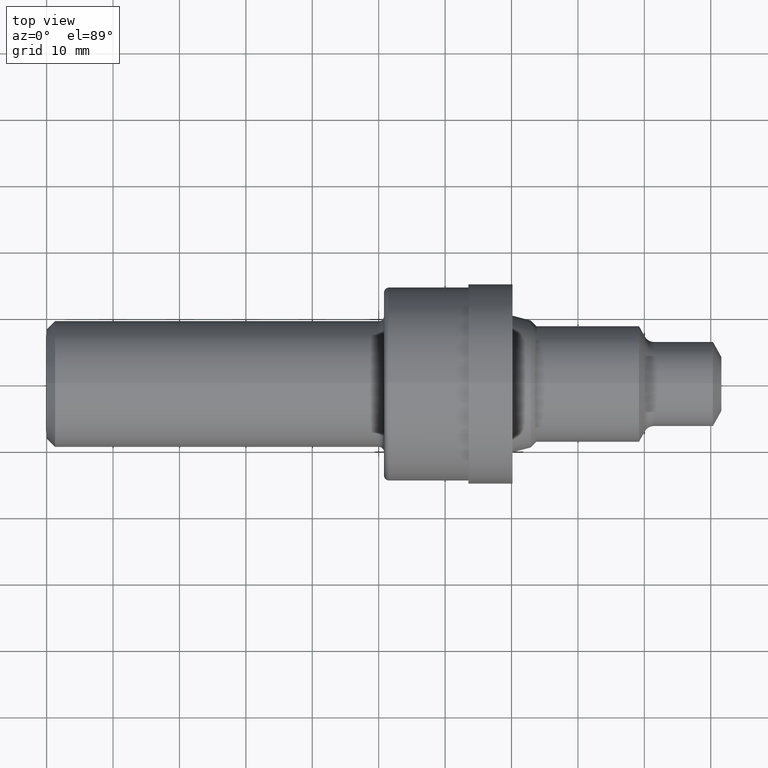
[diagram: clean part render]
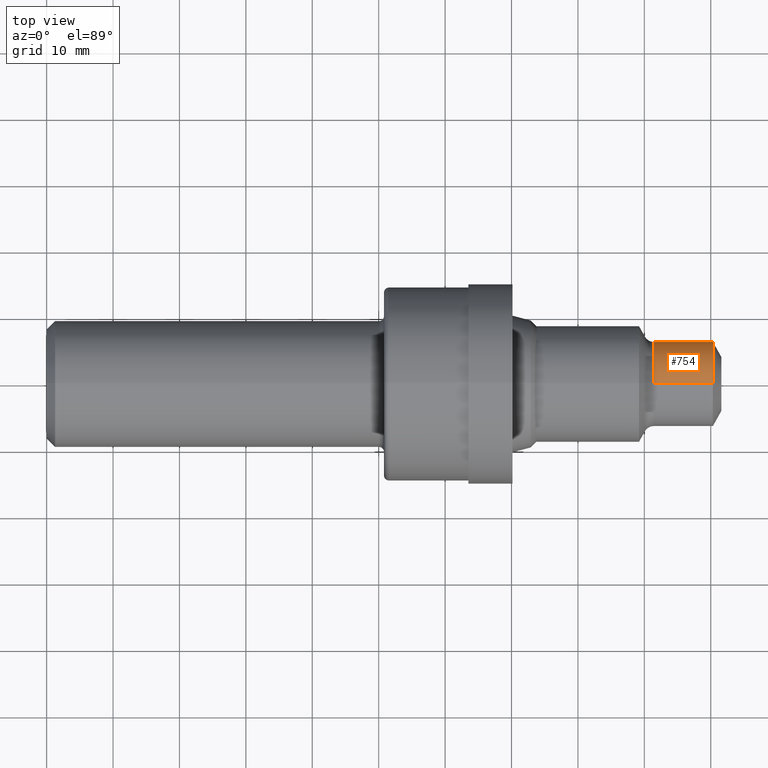
[diagram: same view with one face highlighted and labeled with its STEP entity id]
A machine part, top view. The second image highlights one B-rep face of the part: STEP entity #754.
In plain terms, the highlighted cylindrical surface (partial cylindrical patch) has radius 6.3602 mm, axis along (-1, -0, -0).
Its self-contained STEP definition (entity closure, byte-faithful):
#13 = VERTEX_POINT ( 'NONE', #341 ) ;
#17 = DIRECTION ( 'NONE',  ( 0.0000000000000000000, 0.0000000000000000000, 1.000000000000000000 ) ) ;
#27 = VECTOR ( 'NONE', #832, 39.37007874015748143 ) ;
#34 = EDGE_CURVE ( 'NONE', #162, #13, #729, .T. ) ;
#72 = DIRECTION ( 'NONE',  ( -1.000000000000000000, -0.0000000000000000000, -0.0000000000000000000 ) ) ;
#103 = LINE ( 'NONE', #285, #764 ) ;
#112 = CARTESIAN_POINT ( 'NONE',  ( 3.600404118234053374, 3.262102722415191411E-17, -0.2503999999999999559 ) ) ;
#141 = DIRECTION ( 'NONE',  ( -1.000000000000000000, -0.0000000000000000000, -0.0000000000000000000 ) ) ;
#162 = VERTEX_POINT ( 'NONE', #197 ) ;
#163 = EDGE_CURVE ( 'NONE', #13, #488, #262, .T. ) ;
#167 = AXIS2_PLACEMENT_3D ( 'NONE', #534, #72, #465 ) ;
#197 = CARTESIAN_POINT ( 'NONE',  ( 3.950000000000000178, 0.0000000000000000000, 0.2504000000000000115 ) ) ;
#224 = ORIENTED_EDGE ( 'NONE', *, *, #243, .F. ) ;
#243 = EDGE_CURVE ( 'NONE', #162, #253, #103, .T. ) ;
#253 = VERTEX_POINT ( 'NONE', #352 ) ;
#262 = LINE ( 'NONE', #333, #27 ) ;
#284 = EDGE_CURVE ( 'NONE', #253, #488, #588, .T. ) ;
#285 = CARTESIAN_POINT ( 'NONE',  ( 0.0000000000000000000, 0.0000000000000000000, 0.2504000000000000115 ) ) ;
#293 = CYLINDRICAL_SURFACE ( 'NONE', #411, 0.2504000000000000115 ) ;
#306 = ORIENTED_EDGE ( 'NONE', *, *, #163, .T. ) ;
#333 = CARTESIAN_POINT ( 'NONE',  ( 0.0000000000000000000, 3.066515585064972173E-17, -0.2504000000000000115 ) ) ;
#341 = CARTESIAN_POINT ( 'NONE',  ( 3.950000000000000178, 3.066515585064972173E-17, -0.2504000000000000115 ) ) ;
#352 = CARTESIAN_POINT ( 'NONE',  ( 3.600404118234053374, 0.0000000000000000000, 0.2503999999999999559 ) ) ;
#411 = AXIS2_PLACEMENT_3D ( 'NONE', #470, #141, #414 ) ;
#414 = DIRECTION ( 'NONE',  ( 0.0000000000000000000, 0.0000000000000000000, 1.000000000000000000 ) ) ;
#442 = EDGE_LOOP ( 'NONE', ( #529, #306, #678, #224 ) ) ;
#449 = AXIS2_PLACEMENT_3D ( 'NONE', #784, #600, #17 ) ;
#465 = DIRECTION ( 'NONE',  ( 0.0000000000000000000, 0.0000000000000000000, 1.000000000000000000 ) ) ;
#470 = CARTESIAN_POINT ( 'NONE',  ( 0.0000000000000000000, 0.0000000000000000000, 0.0000000000000000000 ) ) ;
#487 = FACE_OUTER_BOUND ( 'NONE', #442, .T. ) ;
#488 = VERTEX_POINT ( 'NONE', #112 ) ;
#529 = ORIENTED_EDGE ( 'NONE', *, *, #34, .T. ) ;
#534 = CARTESIAN_POINT ( 'NONE',  ( 3.950000000000000178, 0.0000000000000000000, 0.0000000000000000000 ) ) ;
#588 = CIRCLE ( 'NONE', #449, 0.2503999999999999559 ) ;
#600 = DIRECTION ( 'NONE',  ( -1.000000000000000000, -0.0000000000000000000, -0.0000000000000000000 ) ) ;
#609 = DIRECTION ( 'NONE',  ( -1.000000000000000000, -0.0000000000000000000, -0.0000000000000000000 ) ) ;
#678 = ORIENTED_EDGE ( 'NONE', *, *, #284, .F. ) ;
#729 = CIRCLE ( 'NONE', #167, 0.2504000000000000115 ) ;
#754 = ADVANCED_FACE ( 'NONE', ( #487 ), #293, .T. ) ;
#764 = VECTOR ( 'NONE', #609, 39.37007874015748143 ) ;
#784 = CARTESIAN_POINT ( 'NONE',  ( 3.600404118234053374, 0.0000000000000000000, 0.0000000000000000000 ) ) ;
#832 = DIRECTION ( 'NONE',  ( -1.000000000000000000, -0.0000000000000000000, -0.0000000000000000000 ) ) ;